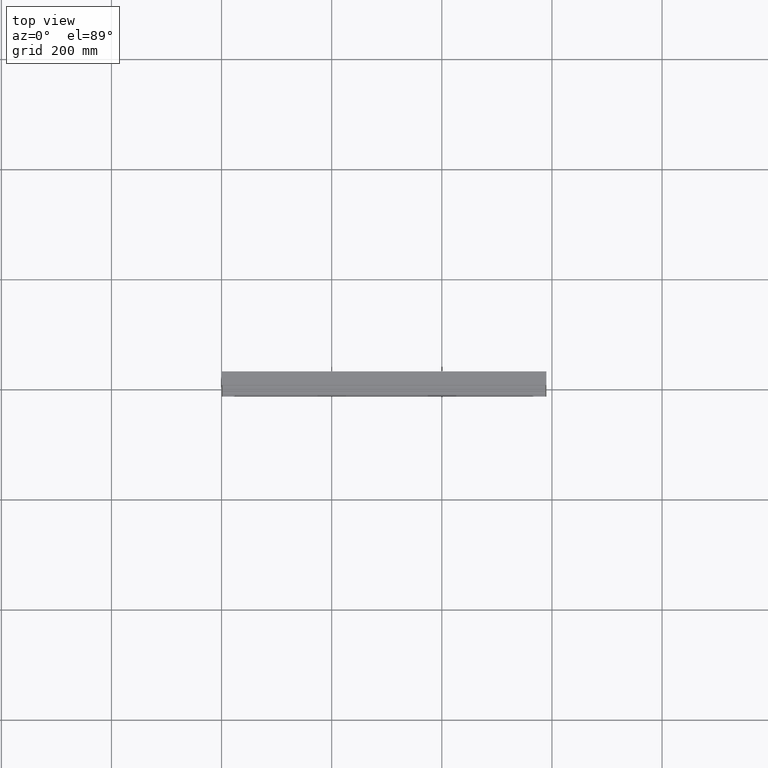
[diagram: clean part render]
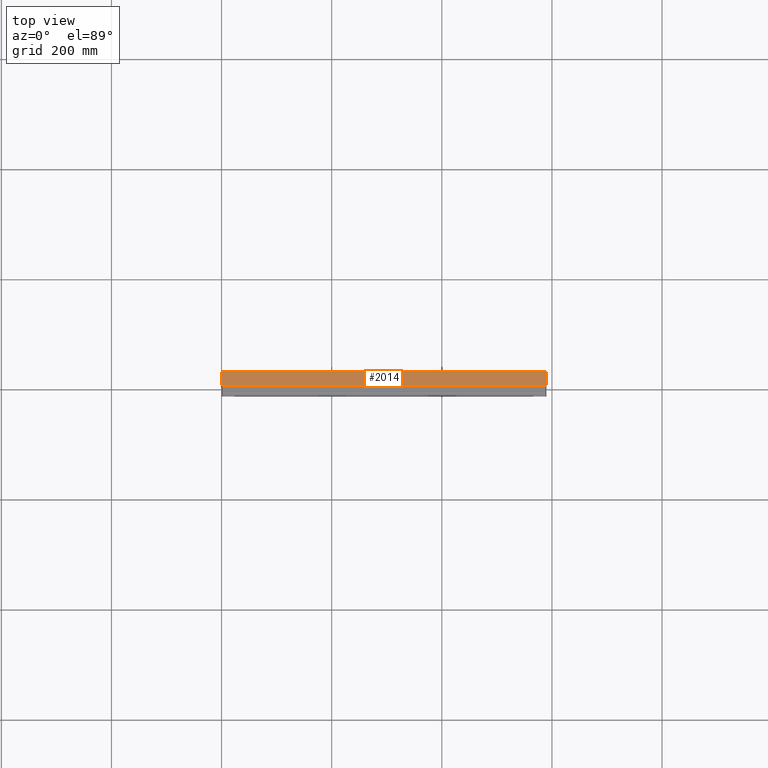
[diagram: same view with one face highlighted and labeled with its STEP entity id]
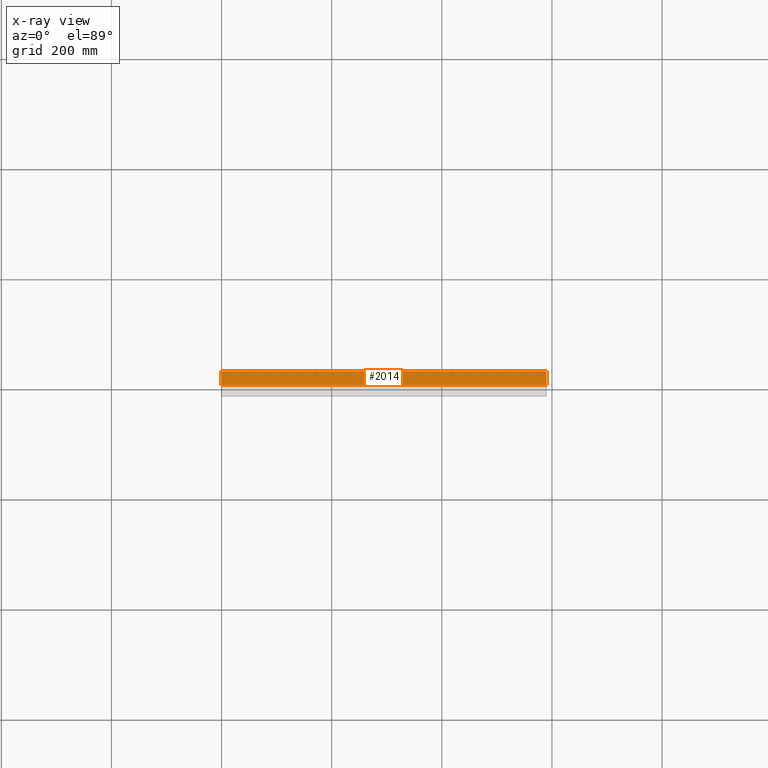
[diagram: x-ray of the same camera — body ghosted, the highlighted face saturated]
A machine part, top view. The second image highlights one B-rep face of the part: STEP entity #2014.
The next image is the same camera in x-ray: the body ghosted, the highlighted face saturated — about 0% of this face is hidden behind the body in this view.
In plain terms, the highlighted planar face has unit normal (-0, 0, -1).
Its self-contained STEP definition (entity closure, byte-faithful):
#816 = CARTESIAN_POINT ( 'NONE',  ( 590.0000000000001100, -12.50000000000000000, -2.220446049250313100E-013 ) ) ;
#2014 = ADVANCED_FACE ( 'NONE', ( #16459 ), #86088, .F. ) ;
#3135 = CARTESIAN_POINT ( 'NONE',  ( 1.377727649040772400E-015, -12.50000000000000000, -3.330669073875469600E-013 ) ) ;
#4500 = ORIENTED_EDGE ( 'NONE', *, *, #64804, .F. ) ;
#5853 = ORIENTED_EDGE ( 'NONE', *, *, #20361, .T. ) ;
#5907 = CARTESIAN_POINT ( 'NONE',  ( 590.0000000000001100, 12.50000000000000000, 0.0000000000000000000 ) ) ;
#5921 = VERTEX_POINT ( 'NONE', #36672 ) ;
#6997 = EDGE_CURVE ( 'NONE', #65669, #24767, #45329, .T. ) ;
#10300 = AXIS2_PLACEMENT_3D ( 'NONE', #14643, #38092, #46537 ) ;
#14076 = ORIENTED_EDGE ( 'NONE', *, *, #41394, .F. ) ;
#14643 = CARTESIAN_POINT ( 'NONE',  ( 590.0000000000001100, 12.49999999999947200, 0.0000000000000000000 ) ) ;
#15880 = DIRECTION ( 'NONE',  ( -1.000000000000000000, 0.0000000000000000000, 2.075672540927716500E-017 ) ) ;
#16235 = CARTESIAN_POINT ( 'NONE',  ( 590.0000000000001100, 12.49999999999947200, 0.0000000000000000000 ) ) ;
#16459 = FACE_OUTER_BOUND ( 'NONE', #81749, .T. ) ;
#17475 = CARTESIAN_POINT ( 'NONE',  ( 2.041077998578923800E-016, -4.166666666666667900, 0.0000000000000000000 ) ) ;
#19565 = CARTESIAN_POINT ( 'NONE',  ( 1.377727649040772400E-015, -12.50000000000000000, -3.330669073875469600E-013 ) ) ;
#20361 = EDGE_CURVE ( 'NONE', #65669, #5921, #25583, .T. ) ;
#24767 = VERTEX_POINT ( 'NONE', #41841 ) ;
#25271 = VECTOR ( 'NONE', #79591, 1000.000000000000000 ) ;
#25583 = LINE ( 'NONE', #5907, #76971 ) ;
#27210 = B_SPLINE_CURVE_WITH_KNOTS ( 'NONE', 3,
 ( #3135, #17475, #81560, #74223 ),
 .UNSPECIFIED., .F., .F.,
 ( 4, 4 ),
 ( 0.0000000000000000000, 1.000000000000000000 ),
 .UNSPECIFIED. ) ;
#32043 = LINE ( 'NONE', #816, #47163 ) ;
#36672 = CARTESIAN_POINT ( 'NONE',  ( -2.171313971796572000E-028, 12.50000000000000000, 1.224646799147369200E-014 ) ) ;
#38092 = DIRECTION ( 'NONE',  ( -2.075672540927716500E-017, 3.061616997868383600E-016, -1.000000000000000000 ) ) ;
#41394 = EDGE_CURVE ( 'NONE', #24767, #90491, #32043, .T. ) ;
#41841 = CARTESIAN_POINT ( 'NONE',  ( 590.0000000000001100, -12.50000000000000000, -2.220446049250313100E-013 ) ) ;
#45329 = LINE ( 'NONE', #16235, #25271 ) ;
#46537 = DIRECTION ( 'NONE',  ( 0.0000000000000000000, 1.000000000000000000, 3.061616997868383600E-016 ) ) ;
#47163 = VECTOR ( 'NONE', #15880, 1000.000000000000000 ) ;
#63935 = CARTESIAN_POINT ( 'NONE',  ( 590.0000000000001100, 12.50000000000000000, 0.0000000000000000000 ) ) ;
#64804 = EDGE_CURVE ( 'NONE', #90491, #5921, #27210, .T. ) ;
#65669 = VERTEX_POINT ( 'NONE', #63935 ) ;
#74223 = CARTESIAN_POINT ( 'NONE',  ( -2.171313971796572000E-028, 12.50000000000000000, 1.224646799147369200E-014 ) ) ;
#76971 = VECTOR ( 'NONE', #85735, 1000.000000000000000 ) ;
#79591 = DIRECTION ( 'NONE',  ( -3.061616997868384600E-016, -1.000000000000000000, -3.061616997868383600E-016 ) ) ;
#81560 = CARTESIAN_POINT ( 'NONE',  ( -2.347239698365760600E-015, 4.166666666666667900, 0.0000000000000000000 ) ) ;
#81749 = EDGE_LOOP ( 'NONE', ( #5853, #4500, #14076, #101530 ) ) ;
#85735 = DIRECTION ( 'NONE',  ( -1.000000000000000000, 0.0000000000000000000, 2.075672540927716500E-017 ) ) ;
#86088 = PLANE ( 'NONE',  #10300 ) ;
#90491 = VERTEX_POINT ( 'NONE', #19565 ) ;
#101530 = ORIENTED_EDGE ( 'NONE', *, *, #6997, .F. ) ;